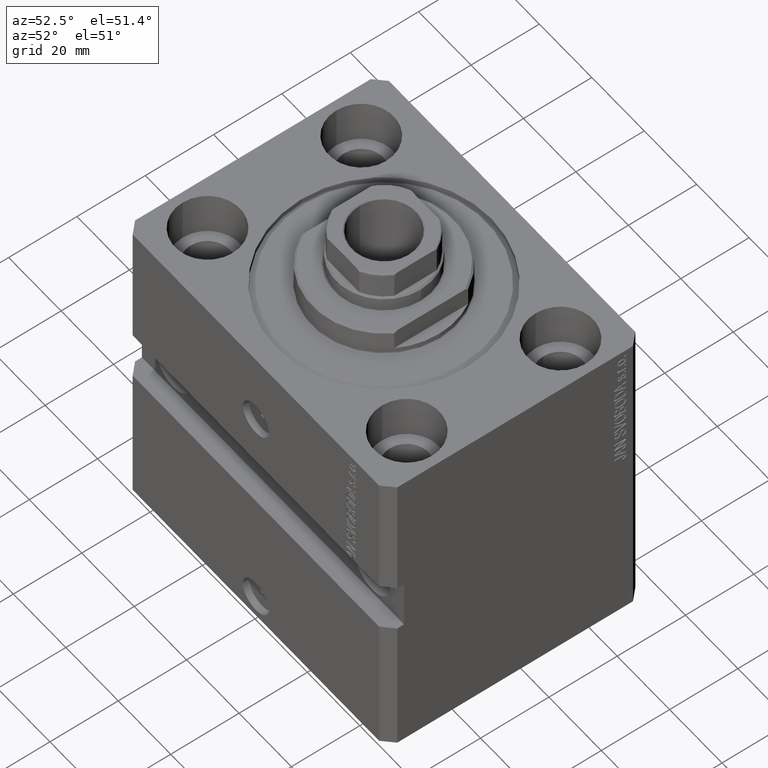
[diagram: clean part render]
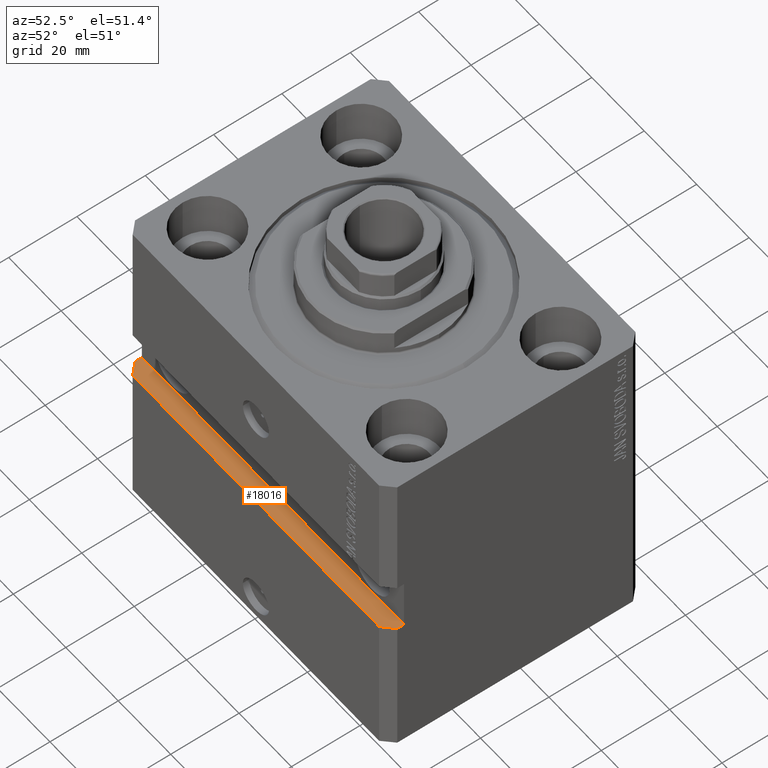
[diagram: same view with one face highlighted and labeled with its STEP entity id]
A machine part, auxiliary view. The second image highlights one B-rep face of the part: STEP entity #18016.
In plain terms, the highlighted planar face has unit normal (0, 0, -1).
Its self-contained STEP definition (entity closure, byte-faithful):
#1958 = CARTESIAN_POINT ( 'NONE',  ( 47.00000000000000000, -37.50000000000000711, -52.50000000000000000 ) ) ;
#2295 = VERTEX_POINT ( 'NONE', #36735 ) ;
#3494 = VECTOR ( 'NONE', #31056, 1000.000000000000000 ) ;
#3848 = FACE_OUTER_BOUND ( 'NONE', #27648, .T. ) ;
#4303 = DIRECTION ( 'NONE',  ( 0.000000000000000000, 0.000000000000000000, -1.000000000000000000 ) ) ;
#4713 = ORIENTED_EDGE ( 'NONE', *, *, #30092, .F. ) ;
#4834 = ORIENTED_EDGE ( 'NONE', *, *, #17549, .T. ) ;
#5366 = VERTEX_POINT ( 'NONE', #41202 ) ;
#6310 = CARTESIAN_POINT ( 'NONE',  ( 49.99999999999999289, -32.49999999999999289, -52.50000000000000000 ) ) ;
#7309 = VERTEX_POINT ( 'NONE', #18410 ) ;
#7723 = EDGE_CURVE ( 'NONE', #31597, #5366, #23265, .T. ) ;
#9073 = ORIENTED_EDGE ( 'NONE', *, *, #30733, .T. ) ;
#9421 = DIRECTION ( 'NONE',  ( 0.7071067811865483499, 0.7071067811865465735, 0.000000000000000000 ) ) ;
#12948 = EDGE_CURVE ( 'NONE', #26740, #5366, #23279, .T. ) ;
#13892 = DIRECTION ( 'NONE',  ( 1.000000000000000000, 1.387778780781445676E-16, 0.000000000000000000 ) ) ;
#14557 = CARTESIAN_POINT ( 'NONE',  ( -50.00000000000001421, -32.50000000000000711, -52.50000000000000000 ) ) ;
#15326 = ORIENTED_EDGE ( 'NONE', *, *, #12948, .T. ) ;
#15989 = EDGE_CURVE ( 'NONE', #19622, #7309, #29160, .T. ) ;
#17549 = EDGE_CURVE ( 'NONE', #7309, #2295, #40719, .T. ) ;
#17995 = CARTESIAN_POINT ( 'NONE',  ( 47.00000000000000000, -37.49999999999999289, -52.50000000000000000 ) ) ;
#18016 = ADVANCED_FACE ( 'NONE', ( #3848 ), #39049, .F. ) ;
#18410 = CARTESIAN_POINT ( 'NONE',  ( -50.00000000000001421, -34.50000000000000000, -52.50000000000000000 ) ) ;
#18759 = VECTOR ( 'NONE', #13892, 1000.000000000000000 ) ;
#19622 = VERTEX_POINT ( 'NONE', #31080 ) ;
#19852 = CARTESIAN_POINT ( 'NONE',  ( 49.99999999999999289, -32.49999999999999289, -52.50000000000000000 ) ) ;
#21892 = DIRECTION ( 'NONE',  ( 1.176083712526788232E-16, -1.000000000000000000, -0.000000000000000000 ) ) ;
#22711 = VECTOR ( 'NONE', #40308, 1000.000000000000000 ) ;
#23265 = LINE ( 'NONE', #19852, #22711 ) ;
#23279 = LINE ( 'NONE', #1958, #29250 ) ;
#23917 = DIRECTION ( 'NONE',  ( 0.7071067811865492381, -0.7071067811865457964, 0.000000000000000000 ) ) ;
#26740 = VERTEX_POINT ( 'NONE', #17995 ) ;
#27544 = CARTESIAN_POINT ( 'NONE',  ( -50.00000000000000000, -34.50000000000000000, -52.50000000000000000 ) ) ;
#27634 = ORIENTED_EDGE ( 'NONE', *, *, #7723, .F. ) ;
#27648 = EDGE_LOOP ( 'NONE', ( #15326, #27634, #4713, #37068, #4834, #9073 ) ) ;
#29160 = LINE ( 'NONE', #29387, #30046 ) ;
#29250 = VECTOR ( 'NONE', #9421, 1000.000000000000114 ) ;
#29387 = CARTESIAN_POINT ( 'NONE',  ( -50.00000000000001421, -32.50000000000000711, -52.50000000000000000 ) ) ;
#30046 = VECTOR ( 'NONE', #21892, 1000.000000000000000 ) ;
#30092 = EDGE_CURVE ( 'NONE', #19622, #31597, #34997, .T. ) ;
#30107 = AXIS2_PLACEMENT_3D ( 'NONE', #38143, #4303, #31338 ) ;
#30733 = EDGE_CURVE ( 'NONE', #2295, #26740, #41277, .T. ) ;
#31056 = DIRECTION ( 'NONE',  ( 1.000000000000000000, 1.387778780781445676E-16, 0.000000000000000000 ) ) ;
#31080 = CARTESIAN_POINT ( 'NONE',  ( -50.00000000000001421, -32.50000000000000711, -52.50000000000000000 ) ) ;
#31338 = DIRECTION ( 'NONE',  ( -1.000000000000000000, 0.000000000000000000, -0.000000000000000000 ) ) ;
#31597 = VERTEX_POINT ( 'NONE', #6310 ) ;
#34997 = LINE ( 'NONE', #14557, #18759 ) ;
#36735 = CARTESIAN_POINT ( 'NONE',  ( -46.99999999999998579, -37.50000000000000711, -52.50000000000000000 ) ) ;
#37068 = ORIENTED_EDGE ( 'NONE', *, *, #15989, .T. ) ;
#38143 = CARTESIAN_POINT ( 'NONE',  ( -50.00000000000001421, -32.50000000000000711, -52.50000000000000000 ) ) ;
#39049 = PLANE ( 'NONE',  #30107 ) ;
#40308 = DIRECTION ( 'NONE',  ( 1.176083712526788232E-16, -1.000000000000000000, -0.000000000000000000 ) ) ;
#40719 = LINE ( 'NONE', #27544, #41692 ) ;
#41202 = CARTESIAN_POINT ( 'NONE',  ( 49.99999999999999289, -34.50000000000001421, -52.50000000000000000 ) ) ;
#41277 = LINE ( 'NONE', #41497, #3494 ) ;
#41497 = CARTESIAN_POINT ( 'NONE',  ( -50.00000000000001421, -37.50000000000000711, -52.50000000000000000 ) ) ;
#41692 = VECTOR ( 'NONE', #23917, 1000.000000000000000 ) ;